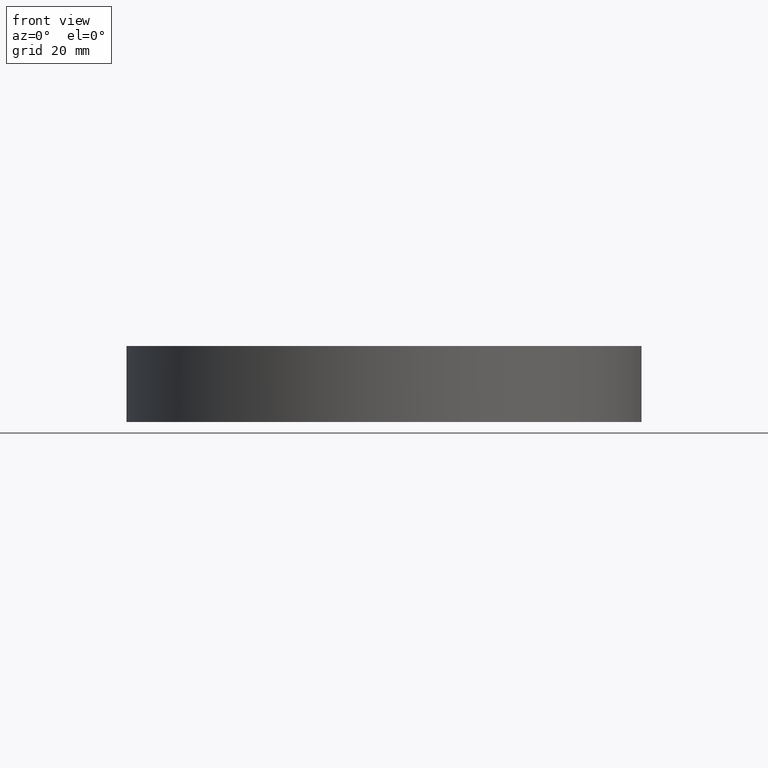
[diagram: clean part render]
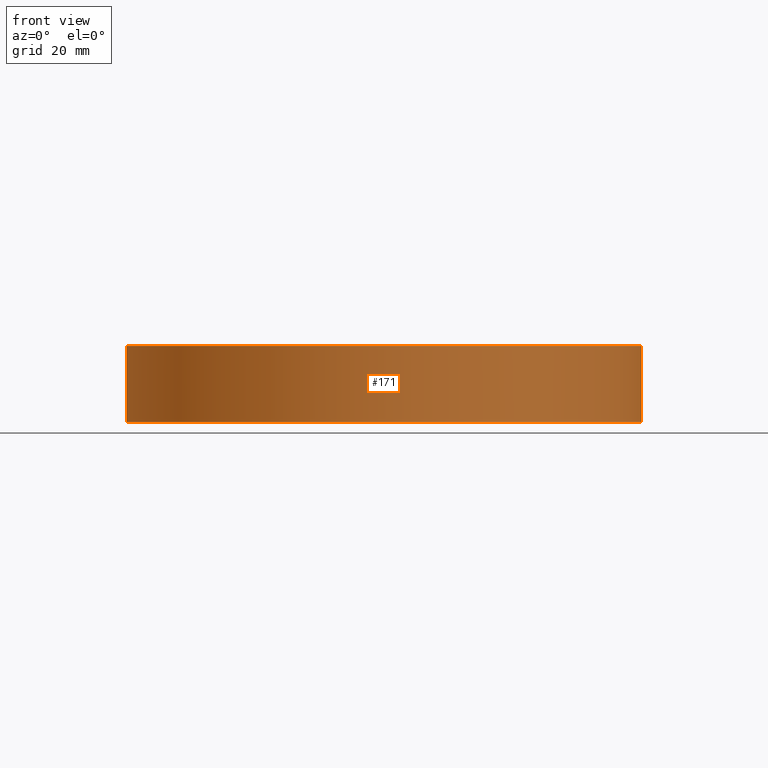
[diagram: same view with one face highlighted and labeled with its STEP entity id]
A machine part, front view. The second image highlights one B-rep face of the part: STEP entity #171.
In plain terms, the highlighted cylindrical surface (partial cylindrical patch) has radius 50.8 mm, axis along (-0, -0, -1).
Its self-contained STEP definition (entity closure, byte-faithful):
#3 = AXIS2_PLACEMENT_3D ( 'NONE', #161, #45, #119 ) ;
#7 = ORIENTED_EDGE ( 'NONE', *, *, #67, .T. ) ;
#9 = VERTEX_POINT ( 'NONE', #103 ) ;
#11 = CARTESIAN_POINT ( 'NONE',  ( 1.249000902703301108E-13, 0.000000000000000000, 15.00000000000001421 ) ) ;
#13 = FACE_OUTER_BOUND ( 'NONE', #194, .T. ) ;
#15 = DIRECTION ( 'NONE',  ( 1.000000000000000000, 0.000000000000000000, 0.000000000000000000 ) ) ;
#16 = CARTESIAN_POINT ( 'NONE',  ( -50.79999999999999716, 0.000000000000000000, 15.00000000000000000 ) ) ;
#31 = CARTESIAN_POINT ( 'NONE',  ( 50.80000000000143956, 6.221205739668731224E-15, 15.00000000000001421 ) ) ;
#45 = DIRECTION ( 'NONE',  ( -0.000000000000000000, -0.000000000000000000, -1.000000000000000000 ) ) ;
#47 = DIRECTION ( 'NONE',  ( -0.000000000000000000, -0.000000000000000000, -1.000000000000000000 ) ) ;
#50 = EDGE_CURVE ( 'NONE', #132, #133, #76, .T. ) ;
#51 = DIRECTION ( 'NONE',  ( 0.000000000000000000, 0.000000000000000000, 1.000000000000000000 ) ) ;
#55 = CIRCLE ( 'NONE', #162, 50.80000000000131877 ) ;
#59 = ORIENTED_EDGE ( 'NONE', *, *, #168, .T. ) ;
#67 = EDGE_CURVE ( 'NONE', #9, #160, #94, .T. ) ;
#74 = ORIENTED_EDGE ( 'NONE', *, *, #123, .T. ) ;
#76 = LINE ( 'NONE', #134, #193 ) ;
#90 = AXIS2_PLACEMENT_3D ( 'NONE', #184, #51, #15 ) ;
#94 = LINE ( 'NONE', #16, #109 ) ;
#97 = DIRECTION ( 'NONE',  ( -0.000000000000000000, -0.000000000000000000, -1.000000000000000000 ) ) ;
#103 = CARTESIAN_POINT ( 'NONE',  ( -50.80000000000119087, 0.000000000000000000, 15.00000000000001421 ) ) ;
#106 = CARTESIAN_POINT ( 'NONE',  ( 50.79999999999999716, 6.221205739668553730E-15, 0.000000000000000000 ) ) ;
#109 = VECTOR ( 'NONE', #150, 1000.000000000000000 ) ;
#119 = DIRECTION ( 'NONE',  ( -1.000000000000000000, 0.000000000000000000, 0.000000000000000000 ) ) ;
#121 = CIRCLE ( 'NONE', #90, 50.79999999999999716 ) ;
#123 = EDGE_CURVE ( 'NONE', #160, #133, #121, .T. ) ;
#132 = VERTEX_POINT ( 'NONE', #31 ) ;
#133 = VERTEX_POINT ( 'NONE', #106 ) ;
#134 = CARTESIAN_POINT ( 'NONE',  ( 50.79999999999999716, 6.221205739668553730E-15, 15.00000000000000000 ) ) ;
#146 = CARTESIAN_POINT ( 'NONE',  ( -50.79999999999999716, 0.000000000000000000, 0.000000000000000000 ) ) ;
#150 = DIRECTION ( 'NONE',  ( -0.000000000000000000, -0.000000000000000000, -1.000000000000000000 ) ) ;
#159 = ORIENTED_EDGE ( 'NONE', *, *, #50, .F. ) ;
#160 = VERTEX_POINT ( 'NONE', #146 ) ;
#161 = CARTESIAN_POINT ( 'NONE',  ( 0.000000000000000000, 0.000000000000000000, 15.00000000000000000 ) ) ;
#162 = AXIS2_PLACEMENT_3D ( 'NONE', #11, #47, #198 ) ;
#168 = EDGE_CURVE ( 'NONE', #132, #9, #55, .T. ) ;
#171 = ADVANCED_FACE ( 'NONE', ( #13 ), #196, .T. ) ;
#184 = CARTESIAN_POINT ( 'NONE',  ( 0.000000000000000000, 0.000000000000000000, 0.000000000000000000 ) ) ;
#193 = VECTOR ( 'NONE', #97, 1000.000000000000000 ) ;
#194 = EDGE_LOOP ( 'NONE', ( #159, #59, #7, #74 ) ) ;
#196 = CYLINDRICAL_SURFACE ( 'NONE', #3, 50.79999999999999716 ) ;
#198 = DIRECTION ( 'NONE',  ( 1.000000000000000000, 0.000000000000000000, 0.000000000000000000 ) ) ;